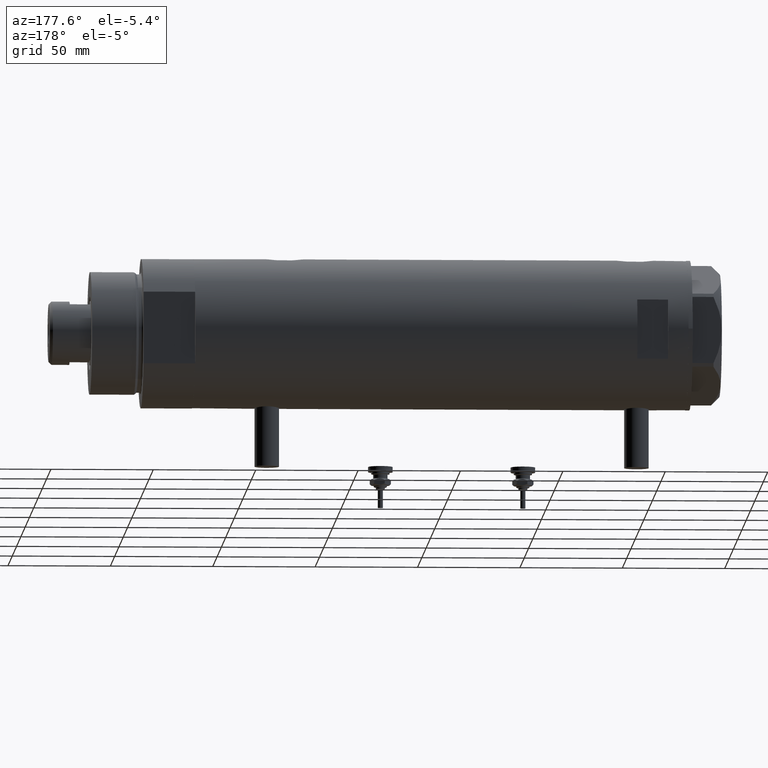
[diagram: clean part render]
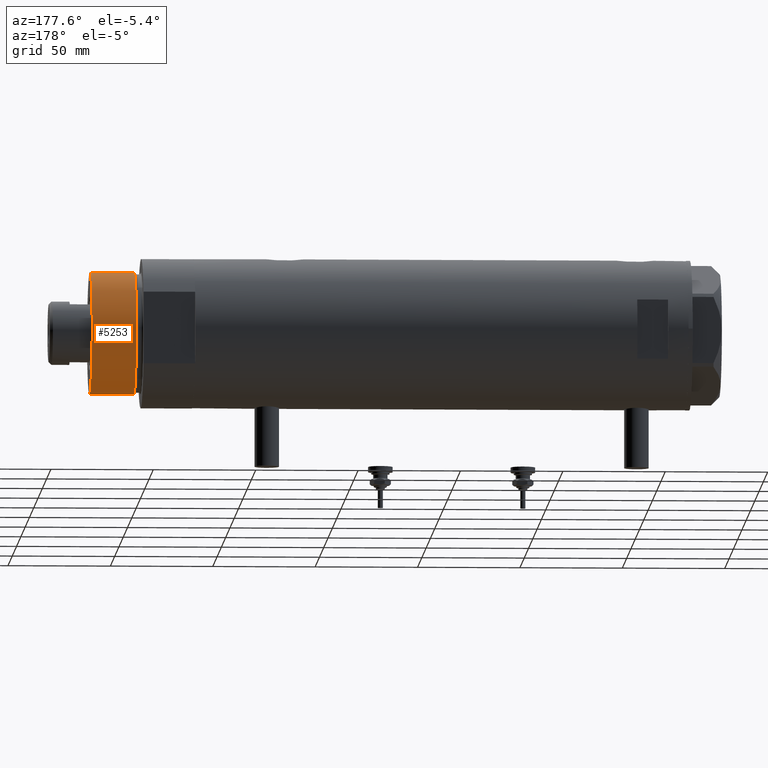
[diagram: same view with one face highlighted and labeled with its STEP entity id]
A machine part, auxiliary view. The second image highlights one B-rep face of the part: STEP entity #5253.
In plain terms, the highlighted cylindrical surface (partial cylindrical patch) has radius 30 mm, axis along (-1, -0, 0).
Its self-contained STEP definition (entity closure, byte-faithful):
#218 = CARTESIAN_POINT ( 'NONE',  ( -30.00000000000000000, 0.000000000000000000, 28.57384048104054486 ) ) ;
#237 = CARTESIAN_POINT ( 'NONE',  ( 30.00000000000000000, 3.673940397442058389E-15, 50.19999999999999574 ) ) ;
#461 = CIRCLE ( 'NONE', #4402, 30.00000000000000000 ) ;
#737 = DIRECTION ( 'NONE',  ( -0.000000000000000000, -0.000000000000000000, 1.000000000000000000 ) ) ;
#758 = DIRECTION ( 'NONE',  ( -0.000000000000000000, -0.000000000000000000, -1.000000000000000000 ) ) ;
#870 = CYLINDRICAL_SURFACE ( 'NONE', #1132, 30.00000000000000000 ) ;
#1125 = VECTOR ( 'NONE', #5297, 1000.000000000000000 ) ;
#1132 = AXIS2_PLACEMENT_3D ( 'NONE', #4872, #3489, #1195 ) ;
#1192 = EDGE_CURVE ( 'NONE', #5503, #3665, #5867, .T. ) ;
#1195 = DIRECTION ( 'NONE',  ( -1.000000000000000000, 0.000000000000000000, 0.000000000000000000 ) ) ;
#1330 = AXIS2_PLACEMENT_3D ( 'NONE', #4380, #4902, #2106 ) ;
#1591 = ORIENTED_EDGE ( 'NONE', *, *, #4020, .F. ) ;
#1927 = ORIENTED_EDGE ( 'NONE', *, *, #1192, .F. ) ;
#1968 = CARTESIAN_POINT ( 'NONE',  ( -30.00000000000000000, 0.000000000000000000, 50.19999999999999574 ) ) ;
#2106 = DIRECTION ( 'NONE',  ( 1.000000000000000000, 0.000000000000000000, 0.000000000000000000 ) ) ;
#2136 = FACE_OUTER_BOUND ( 'NONE', #5855, .T. ) ;
#2250 = ORIENTED_EDGE ( 'NONE', *, *, #4783, .T. ) ;
#2931 = VERTEX_POINT ( 'NONE', #3062 ) ;
#3062 = CARTESIAN_POINT ( 'NONE',  ( 30.00000000000000000, 3.673940397442058389E-15, 50.19999999999999574 ) ) ;
#3304 = ORIENTED_EDGE ( 'NONE', *, *, #3400, .T. ) ;
#3317 = VECTOR ( 'NONE', #758, 1000.000000000000000 ) ;
#3400 = EDGE_CURVE ( 'NONE', #4634, #3665, #461, .T. ) ;
#3489 = DIRECTION ( 'NONE',  ( -0.000000000000000000, -0.000000000000000000, -1.000000000000000000 ) ) ;
#3665 = VERTEX_POINT ( 'NONE', #218 ) ;
#4020 = EDGE_CURVE ( 'NONE', #2931, #5503, #4886, .T. ) ;
#4359 = LINE ( 'NONE', #237, #1125 ) ;
#4380 = CARTESIAN_POINT ( 'NONE',  ( 0.000000000000000000, 0.000000000000000000, 50.19999999999999574 ) ) ;
#4402 = AXIS2_PLACEMENT_3D ( 'NONE', #4508, #737, #4899 ) ;
#4508 = CARTESIAN_POINT ( 'NONE',  ( 0.000000000000000000, 0.000000000000000000, 28.57384048104054486 ) ) ;
#4634 = VERTEX_POINT ( 'NONE', #5146 ) ;
#4783 = EDGE_CURVE ( 'NONE', #2931, #4634, #4359, .T. ) ;
#4872 = CARTESIAN_POINT ( 'NONE',  ( 0.000000000000000000, 0.000000000000000000, 50.19999999999999574 ) ) ;
#4884 = CARTESIAN_POINT ( 'NONE',  ( -30.00000000000000000, 0.000000000000000000, 50.19999999999999574 ) ) ;
#4886 = CIRCLE ( 'NONE', #1330, 30.00000000000000000 ) ;
#4899 = DIRECTION ( 'NONE',  ( 1.000000000000000000, 0.000000000000000000, 0.000000000000000000 ) ) ;
#4902 = DIRECTION ( 'NONE',  ( 0.000000000000000000, 0.000000000000000000, 1.000000000000000000 ) ) ;
#5146 = CARTESIAN_POINT ( 'NONE',  ( 30.00000000000000000, 3.673940397442058389E-15, 28.57384048104054486 ) ) ;
#5253 = ADVANCED_FACE ( 'NONE', ( #2136 ), #870, .T. ) ;
#5297 = DIRECTION ( 'NONE',  ( -0.000000000000000000, -0.000000000000000000, -1.000000000000000000 ) ) ;
#5503 = VERTEX_POINT ( 'NONE', #1968 ) ;
#5855 = EDGE_LOOP ( 'NONE', ( #1591, #2250, #3304, #1927 ) ) ;
#5867 = LINE ( 'NONE', #4884, #3317 ) ;